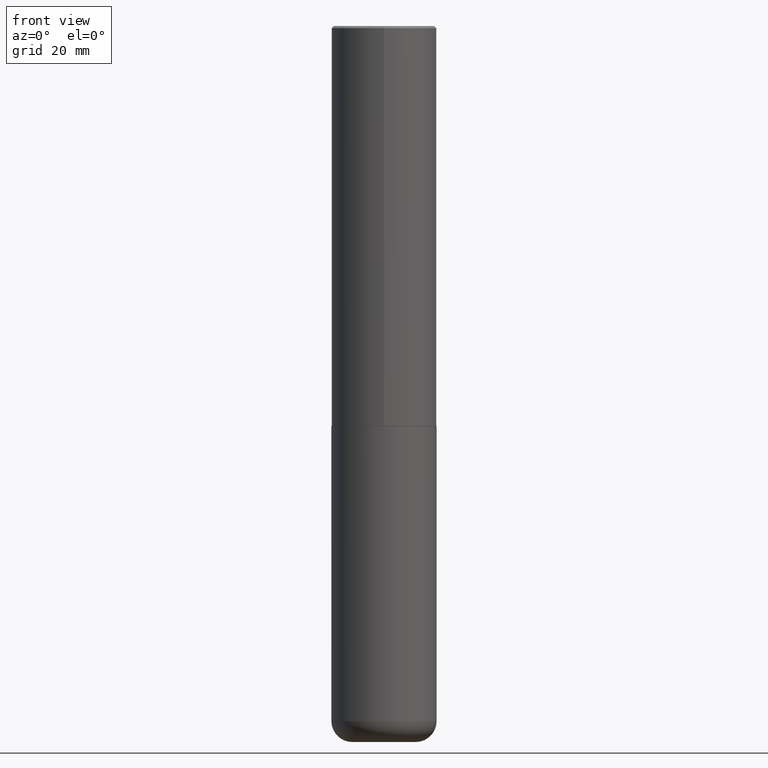
[diagram: clean part render]
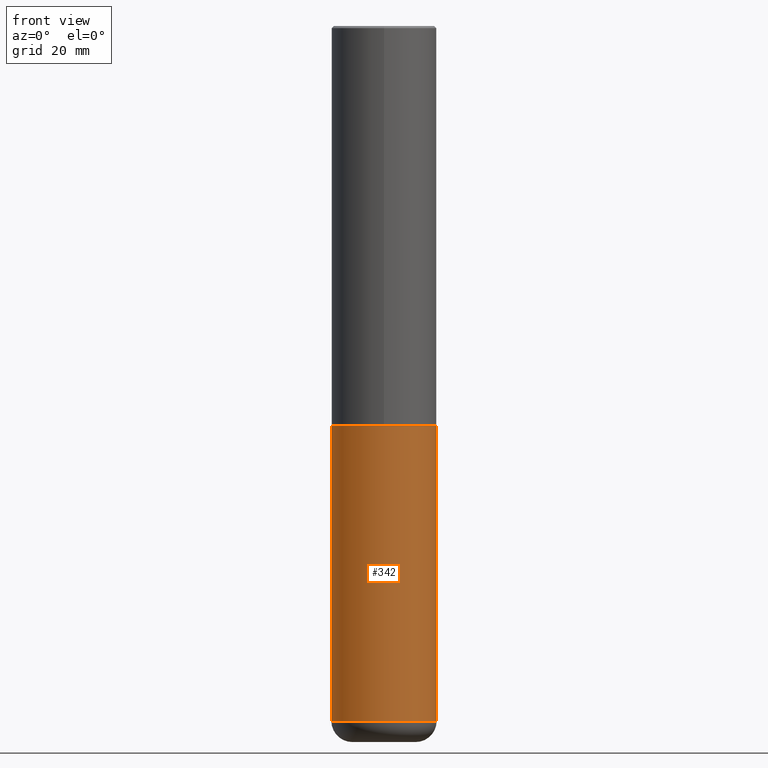
[diagram: same view with one face highlighted and labeled with its STEP entity id]
A machine part, front view. The second image highlights one B-rep face of the part: STEP entity #342.
In plain terms, the highlighted cylindrical surface (partial cylindrical patch) has radius 12.5006 mm, axis along (-0, 0, 1).
Its self-contained STEP definition (entity closure, byte-faithful):
#2 = CIRCLE ( 'NONE', #187, 0.4921499999999999764 ) ;
#4 = CARTESIAN_POINT ( 'NONE',  ( 9.146297882013029477E-29, -1.305848935540725085E-14, -3.740100000000000424 ) ) ;
#16 = DIRECTION ( 'NONE',  ( 1.000000000000000000, -6.982962677686265922E-15, 0.000000000000000000 ) ) ;
#23 = EDGE_CURVE ( 'NONE', #236, #192, #254, .T. ) ;
#43 = ORIENTED_EDGE ( 'NONE', *, *, #358, .T. ) ;
#53 = CARTESIAN_POINT ( 'NONE',  ( 0.4921499999999999764, -3.436665081823295777E-15, 2.399810400207969603E-29 ) ) ;
#67 = AXIS2_PLACEMENT_3D ( 'NONE', #72, #405, #16 ) ;
#72 = CARTESIAN_POINT ( 'NONE',  ( 1.588576536497864771E-28, -2.268066277712507367E-14, -6.495999999999999552 ) ) ;
#108 = DIRECTION ( 'NONE',  ( 1.000000000000000000, -6.982962677686265922E-15, 4.876176775795935793E-29 ) ) ;
#115 = CARTESIAN_POINT ( 'NONE',  ( -0.4921499999999997543, -1.918372670308173998E-14, -6.495999999999999552 ) ) ;
#132 = CARTESIAN_POINT ( 'NONE',  ( -0.4921499999999999764, -1.437263999222282936E-14, -3.740100000000000424 ) ) ;
#150 = CYLINDRICAL_SURFACE ( 'NONE', #164, 0.4921499999999999764 ) ;
#160 = EDGE_CURVE ( 'NONE', #404, #178, #294, .T. ) ;
#164 = AXIS2_PLACEMENT_3D ( 'NONE', #241, #328, #108 ) ;
#165 = CARTESIAN_POINT ( 'NONE',  ( 0.4921499999999997543, -2.611732785894836787E-14, -6.495999999999999552 ) ) ;
#178 = VERTEX_POINT ( 'NONE', #132 ) ;
#185 = DIRECTION ( 'NONE',  ( -2.445468806185136877E-29, 3.491481338843145188E-15, 1.000000000000000000 ) ) ;
#187 = AXIS2_PLACEMENT_3D ( 'NONE', #4, #261, #353 ) ;
#192 = VERTEX_POINT ( 'NONE', #257 ) ;
#219 = EDGE_CURVE ( 'NONE', #178, #192, #2, .T. ) ;
#229 = DIRECTION ( 'NONE',  ( -2.445468806185136877E-29, 3.491481338843145188E-15, 1.000000000000000000 ) ) ;
#236 = VERTEX_POINT ( 'NONE', #165 ) ;
#240 = ORIENTED_EDGE ( 'NONE', *, *, #160, .F. ) ;
#241 = CARTESIAN_POINT ( 'NONE',  ( 0.000000000000000000, 0.000000000000000000, 0.000000000000000000 ) ) ;
#253 = CIRCLE ( 'NONE', #67, 0.4921499999999999764 ) ;
#254 = LINE ( 'NONE', #53, #417 ) ;
#257 = CARTESIAN_POINT ( 'NONE',  ( 0.4921499999999999764, -1.649515443723054663E-14, -3.740100000000000424 ) ) ;
#259 = VECTOR ( 'NONE', #229, 39.37007874015748143 ) ;
#261 = DIRECTION ( 'NONE',  ( -2.445468806185136597E-29, 3.491481338843145583E-15, 1.000000000000000000 ) ) ;
#265 = ORIENTED_EDGE ( 'NONE', *, *, #23, .T. ) ;
#291 = CARTESIAN_POINT ( 'NONE',  ( -0.4921499999999999764, 3.496936074043332897E-15, -2.420853904668951509E-29 ) ) ;
#294 = LINE ( 'NONE', #291, #259 ) ;
#328 = DIRECTION ( 'NONE',  ( -2.445468806185136597E-29, 3.491481338843145583E-15, 1.000000000000000000 ) ) ;
#336 = FACE_OUTER_BOUND ( 'NONE', #382, .T. ) ;
#342 = ADVANCED_FACE ( 'NONE', ( #336 ), #150, .T. ) ;
#353 = DIRECTION ( 'NONE',  ( 1.000000000000000000, -6.982962677686265922E-15, 0.000000000000000000 ) ) ;
#358 = EDGE_CURVE ( 'NONE', #404, #236, #253, .T. ) ;
#382 = EDGE_LOOP ( 'NONE', ( #240, #43, #265, #416 ) ) ;
#404 = VERTEX_POINT ( 'NONE', #115 ) ;
#405 = DIRECTION ( 'NONE',  ( -2.445468806185136597E-29, 3.491481338843145583E-15, 1.000000000000000000 ) ) ;
#416 = ORIENTED_EDGE ( 'NONE', *, *, #219, .F. ) ;
#417 = VECTOR ( 'NONE', #185, 39.37007874015748143 ) ;